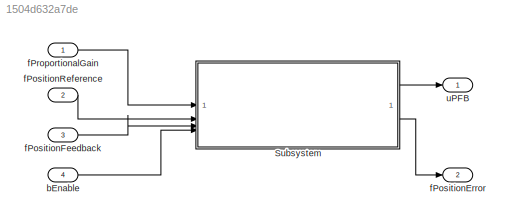
MODEL slx_1504d632a7de
KIND model
CONFIG AbsTol = auto
CONFIG EnableMultiTasking = off
CONFIG FixedStep = auto
CONFIG MaxStep = auto
CONFIG MinStep = auto
CONFIG RelTol = 1e-3
CONFIG SampleTimeConstraint = Unconstrained
CONFIG SolverName = VariableStepAuto
CONFIG StartTime = 0.0
CONFIG StopTime = 10.0
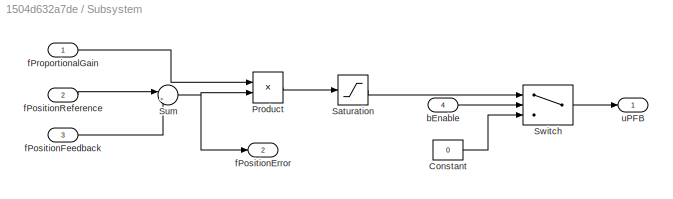
BLOCK [SubSystem] Subsystem
  TreatAsAtomicUnit = on
BLOCK [Constant] Subsystem/Constant
  Value = 0
BLOCK [Product] Subsystem/Product
BLOCK [Saturate] Subsystem/Saturation
BLOCK [Sum] Subsystem/Sum
  Inputs = |+-
BLOCK [Switch] Subsystem/Switch
  Criteria = u2 > Threshold
  InputSameDT = off
  SaturateOnIntegerOverflow = off
BLOCK [Inport] Subsystem/bEnable
  Port = 4
BLOCK [Outport] Subsystem/fPositionError
  Port = 2
BLOCK [Inport] Subsystem/fPositionFeedback
  Port = 3
BLOCK [Inport] Subsystem/fPositionReference
  Port = 2
BLOCK [Inport] Subsystem/fProportionalGain
BLOCK [Outport] Subsystem/uPFB
BLOCK [Inport] bEnable
  Port = 4
BLOCK [Outport] fPositionError
  Port = 2
BLOCK [Inport] fPositionFeedback
  Port = 3
BLOCK [Inport] fPositionReference
  Port = 2
BLOCK [Inport] fProportionalGain
BLOCK [Outport] uPFB
LINE Subsystem/Constant:1 -> Subsystem/Switch:3
LINE Subsystem/Product:1 -> Subsystem/Saturation:1
LINE Subsystem/Saturation:1 -> Subsystem/Switch:1
NET Subsystem/Sum:1 -> Subsystem/Product:2, Subsystem/fPositionError:1
LINE Subsystem/Switch:1 -> Subsystem/uPFB:1
LINE Subsystem/bEnable:1 -> Subsystem/Switch:2
LINE Subsystem/fPositionFeedback:1 -> Subsystem/Sum:2
LINE Subsystem/fPositionReference:1 -> Subsystem/Sum:1
LINE Subsystem/fProportionalGain:1 -> Subsystem/Product:1
LINE Subsystem:1 -> uPFB:1
LINE Subsystem:2 -> fPositionError:1
LINE bEnable:1 -> Subsystem:4
LINE fPositionFeedback:1 -> Subsystem:3
LINE fPositionReference:1 -> Subsystem:2
LINE fProportionalGain:1 -> Subsystem:1
note: NET lines group one-source signal fan-out (src -> all destinations, sorted); 1:1 wires keep LINE
